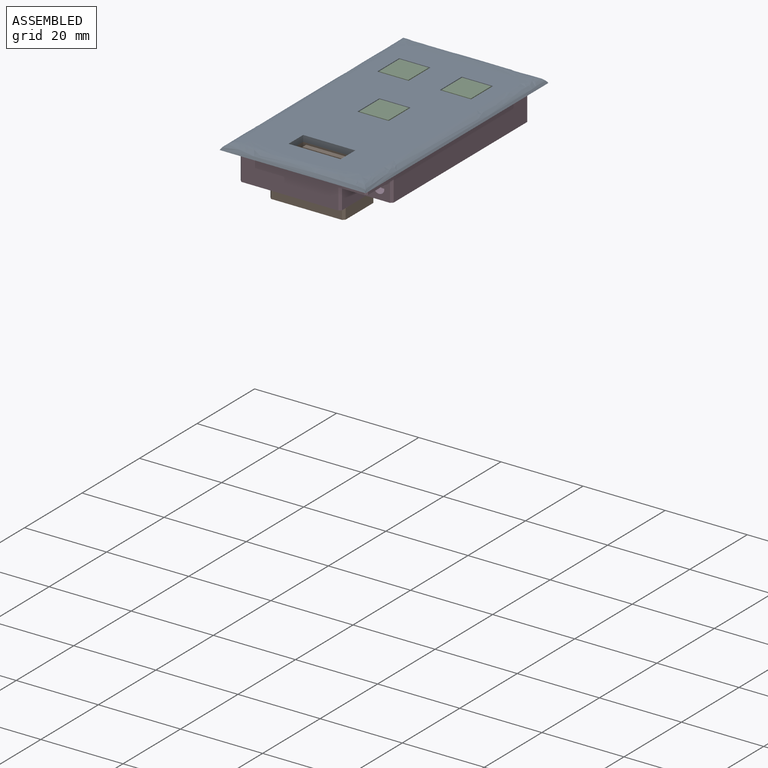
[diagram: assembled view]
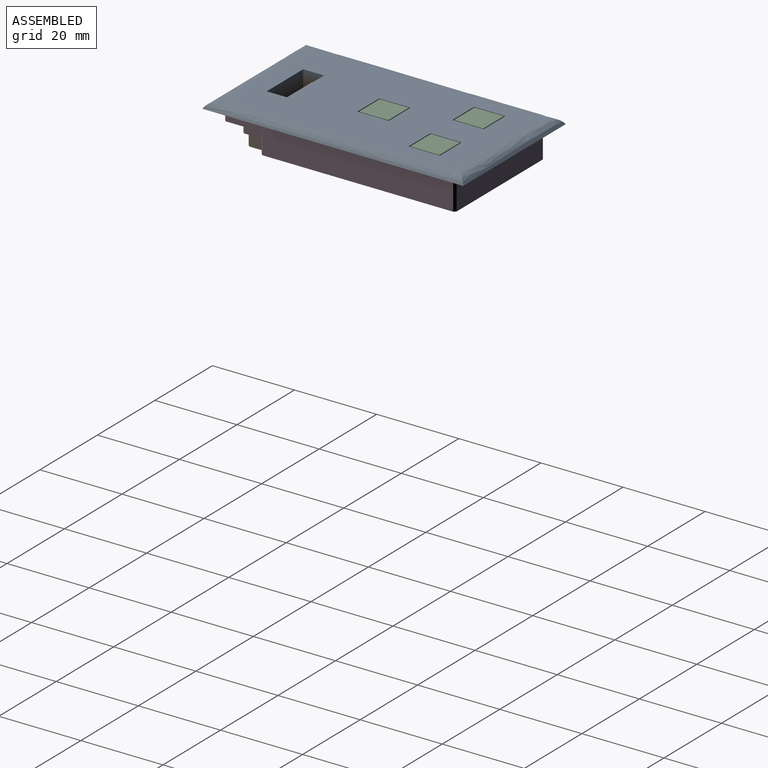
[diagram: assembled view, second angle]
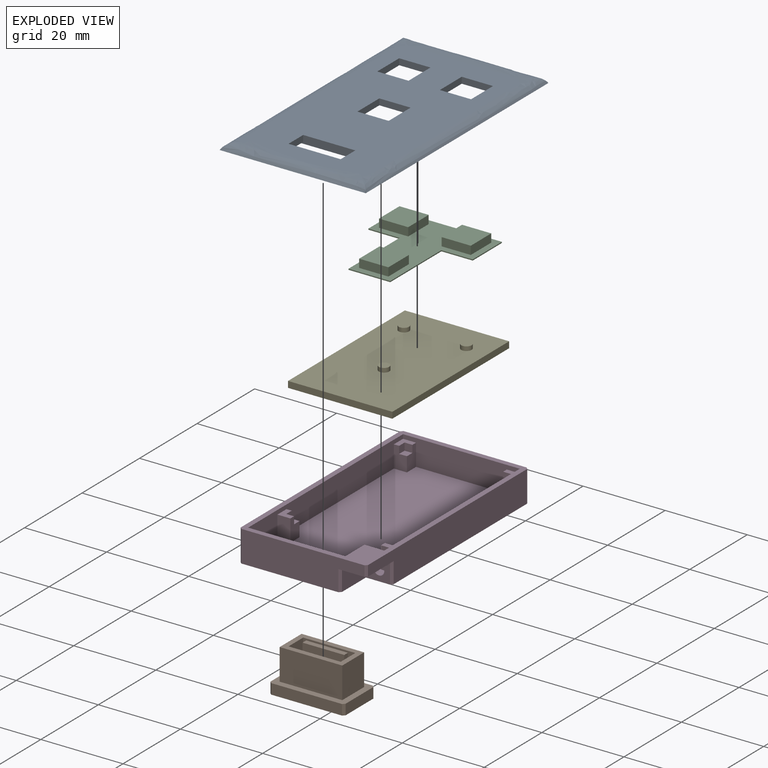
[diagram: exploded view]
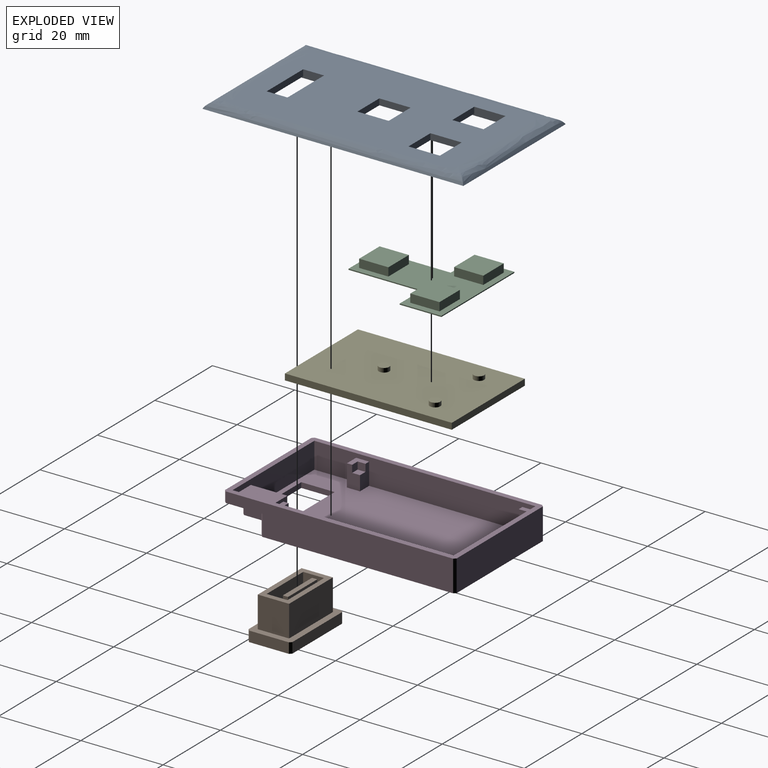
[diagram: exploded view, second angle]
ASSEMBLY  parts=5 mates=4
PART A: 41 faces, bbox 35.6x63.5x3.1 mm
  f0: plane 51.31x25.91mm, normal (0,0,-1), area 992.5mm2, adj f6,f7,f8,f9,f10,f11,f12,f13
  f1: plane 63.5x35.56mm, normal (0,0,-1), area 767.7mm2, adj f20,f21,f22,f23,f24,f25,f26,f39
  f2: plane 54.97x27.03mm, normal (0,0,1), area 1246.8mm2, adj f3,f4,f5,f6,f7,f8,f9,f10
  f3: plane 5.08x1.52mm, normal (-1,0,0), area 7.7mm2, adj f2,f4,f18,f19
  f4: plane 12.7x1.52mm, normal (0,1,0), area 19.4mm2, adj f2,f3,f5,f19
  f5: plane 5.08x1.52mm, normal (1,0,0), area 7.7mm2, adj f2,f4,f18,f19
  f6: plane 7.62x1.52mm, normal (-1,0,0), area 11.6mm2, adj f0,f2,f7,f15
  f7: plane 7.62x1.52mm, normal (0,1,0), area 11.6mm2, adj f0,f2,f6,f8
  f8: plane 7.62x1.52mm, normal (1,0,0), area 11.6mm2, adj f0,f2,f7,f15
  f9: plane 7.62x1.52mm, normal (-1,0,0), area 11.6mm2, adj f0,f2,f10,f16
  f10: plane 7.62x1.52mm, normal (0,1,0), area 11.6mm2, adj f0,f2,f9,f11
  f11: plane 7.62x1.52mm, normal (1,0,0), area 11.6mm2, adj f0,f2,f10,f16
  f12: plane 7.62x1.52mm, normal (-1,0,0), area 11.6mm2, adj f0,f2,f13,f17
  f13: plane 7.62x1.52mm, normal (0,1,0), area 11.6mm2, adj f0,f2,f12,f14
  f14: plane 7.62x1.52mm, normal (1,0,0), area 11.6mm2, adj f0,f2,f13,f17
  f15: plane 7.62x1.52mm, normal (0,-1,0), area 11.6mm2, adj f0,f2,f6,f8
  f16: plane 7.62x1.52mm, normal (0,-1,0), area 11.6mm2, adj f0,f2,f9,f11
  f17: plane 7.62x1.52mm, normal (0,-1,0), area 11.6mm2, adj f0,f2,f12,f14
  f18: plane 12.7x1.52mm, normal (0,-1,0), area 19.4mm2, adj f2,f3,f5,f19
  f19: plane 15.75x8.13mm, normal (0,0,-1), area 63.5mm2, adj f3,f4,f5,f18,f34,f35,f36,f38
  f20: bspline ~35.56x4.27mm, area 153.9mm2, adj f1,f2,f21,f22
  f21: bspline ~63.5x4.27mm, area 289.6mm2, adj f1,f2,f20,f23
  f22: bspline ~63.5x4.27mm, area 289.6mm2, adj f1,f2,f20,f23
  f23: bspline ~35.56x4.27mm, area 153.9mm2, adj f1,f2,f21,f22
  f24: plane 27.94x1.27mm, normal (0,-1,0), area 35.5mm2, adj f1,f25,f39,f40
  f25: plane 53.34x1.27mm, normal (-1,0,0), area 67.7mm2, adj f1,f24,f26,f40
  f26: plane 27.94x1.27mm, normal (0,1,0), area 35.5mm2, adj f1,f25,f39,f40
  f27: plane 9.14x1.27mm, normal (1,0,0), area 11.6mm2, adj f0,f28,f37,f40
  f28: plane 4.06x1.27mm, normal (0,1,0), area 5.2mm2, adj f0,f27,f29,f40
  f29: plane 51.31x1.27mm, normal (-1,0,0), area 65.2mm2, adj f0,f28,f30,f40
  f30: plane 25.91x1.27mm, normal (0,-1,0), area 32.9mm2, adj f0,f29,f31,f40
  f31: plane 51.31x1.27mm, normal (1,0,0), area 65.2mm2, adj f0,f30,f32,f40
  f32: plane 4.06x1.27mm, normal (0,1,0), area 5.2mm2, adj f0,f31,f33,f40
  f33: plane 9.14x1.27mm, normal (-1,0,0), area 11.6mm2, adj f0,f32,f37,f40
  f34: plane 15.75x1.27mm, normal (0,1,0), area 20mm2, adj f19,f35,f38,f40
  f35: plane 8.13x1.27mm, normal (-1,0,0), area 10.3mm2, adj f19,f34,f36,f40
  f36: plane 15.75x1.27mm, normal (0,-1,0), area 20mm2, adj f19,f35,f38,f40
  f37: plane 17.78x1.27mm, normal (0,1,0), area 22.6mm2, adj f0,f27,f33,f40
  f38: plane 8.13x1.27mm, normal (1,0,0), area 10.3mm2, adj f19,f34,f36,f40
  f39: plane 53.34x1.27mm, normal (1,0,0), area 67.7mm2, adj f1,f24,f26,f40
  f40: plane 53.34x27.94mm, normal (0,0,-1), area 195.6mm2, adj f24,f25,f26,f27,f28,f29,f30,f31
PART B: 25 faces, bbox 18.3x10.7x10.2 mm
  f0: plane 10.16x1.27mm, normal (0,0,1), area 12.9mm2, adj f2,f12,f13,f15
  f1: plane 15.24x7.62mm, normal (0,0,1), area 51.6mm2, adj f3,f4,f5,f6,f7,f8,f9,f10
  f2: plane 10.16x2.03mm, normal (1,0,0), area 13.9mm2, adj f0,f6,f11,f13,f14,f15
  f3: plane 15.24x7.62mm, normal (0,-1,0), area 116.1mm2, adj f1,f4,f10,f20
  f4: plane 7.62x7.62mm, normal (-1,0,0), area 58.1mm2, adj f1,f3,f5,f20
  f5: plane 15.24x7.62mm, normal (0,1,0), area 116.1mm2, adj f1,f4,f10,f20
  f6: plane 12.7x10.16mm, normal (0,-1,0), area 116.1mm2, adj f1,f2,f7,f9,f11,f12,f14
  f7: plane 10.16x5.08mm, normal (1,0,0), area 51.6mm2, adj f1,f6,f8,f11
  f8: plane 12.7x10.16mm, normal (0,1,0), area 129mm2, adj f1,f7,f9,f11
  f9: plane 10.16x5.08mm, normal (-1,0,0), area 51.6mm2, adj f1,f6,f8,f11
  f10: plane 7.62x7.62mm, normal (1,0,0), area 58.1mm2, adj f1,f3,f5,f20
  f11: plane 18.29x10.67mm, normal (0,0,-1), area 150.7mm2, adj f2,f6,f7,f8,f9,f12,f13,f16
  f12: plane 10.16x2.03mm, normal (-1,0,0), area 13.9mm2, adj f0,f6,f11,f13,f14,f15
  f13: plane 10.16x10.16mm, normal (0,-1,0), area 103.2mm2, adj f0,f2,f11,f12
  f14: plane 10.16x0.76mm, normal (0,0,1), area 7.7mm2, adj f2,f6,f12,f15
  f15: plane 10.16x8.89mm, normal (0,1,0), area 90.3mm2, adj f0,f2,f12,f14
  f16: plane 17.27x2.54mm, normal (0,1,0), area 43.9mm2, adj f11,f20,f21,f22
  f17: plane 9.65x2.54mm, normal (1,0,0), area 24.5mm2, adj f11,f20,f21,f24
  f18: plane 9.65x2.54mm, normal (-1,0,0), area 24.5mm2, adj f11,f20,f22,f23
  f19: plane 17.27x2.54mm, normal (0,-1,0), area 43.9mm2, adj f11,f20,f23,f24
  f20: plane 18.29x10.67mm, normal (0,0,1), area 78.5mm2, adj f3,f4,f5,f10,f16,f17,f18,f19
  f21: plane 2.54x0.51mm, normal (0.71,0.71,0), area 1.8mm2, adj f11,f16,f17,f20
  f22: plane 2.54x0.51mm, normal (-0.71,0.71,0), area 1.8mm2, adj f11,f16,f18,f20
  f23: plane 2.54x0.51mm, normal (-0.71,-0.71,0), area 1.8mm2, adj f11,f18,f19,f20
  f24: plane 2.54x0.51mm, normal (0.71,-0.71,0), area 1.8mm2, adj f11,f17,f19,f20
PART C: 31 faces, bbox 25.4x27.9x2.3 mm
  f0: plane 27.94x25.4mm, normal (0,0,-1), area 389.5mm2, adj f1,f2,f3,f4,f5,f7,f8,f9
  f1: plane 10.16x0.25mm, normal (-1,0,0), area 2.6mm2, adj f0,f2,f6,f7
  f2: plane 7.62x0.25mm, normal (0,-1,0), area 1.9mm2, adj f0,f1,f3,f6
  f3: plane 17.78x0.25mm, normal (-1,0,0), area 4.5mm2, adj f0,f2,f4,f6
  f4: plane 10.16x0.25mm, normal (0,-1,0), area 2.6mm2, adj f0,f3,f5,f6
  f5: plane 17.78x0.25mm, normal (1,0,0), area 4.5mm2, adj f0,f4,f6,f8
  f6: plane 27.94x25.4mm, normal (0,0,1), area 287mm2, adj f1,f2,f3,f4,f5,f7,f8,f9
  f7: plane 25.4x0.25mm, normal (0,1,0), area 6.5mm2, adj f0,f1,f6,f9
  f8: plane 7.62x0.25mm, normal (0,-1,0), area 1.9mm2, adj f0,f5,f6,f9
  f9: plane 10.16x0.25mm, normal (1,0,0), area 2.6mm2, adj f0,f6,f7,f8
  f10: plane 7.11x2.03mm, normal (0,-1,0), area 14.5mm2, adj f6,f11,f12,f13
  f11: plane 7.11x2.03mm, normal (-1,0,0), area 14.5mm2, adj f6,f10,f13,f14
  f12: plane 7.11x2.03mm, normal (1,0,0), area 14.5mm2, adj f6,f10,f13,f14
  f13: plane 7.11x7.11mm, normal (0,0,1), area 50.6mm2, adj f10,f11,f12,f14
  f14: plane 7.11x2.03mm, normal (0,1,0), area 14.5mm2, adj f6,f11,f12,f13
  f15: plane 7.11x2.03mm, normal (1,0,0), area 14.5mm2, adj f6,f16,f17,f18
  f16: plane 7.11x2.03mm, normal (0,-1,0), area 14.5mm2, adj f6,f15,f18,f19
  f17: plane 7.11x2.03mm, normal (0,1,0), area 14.5mm2, adj f6,f15,f18,f19
  f18: plane 7.11x7.11mm, normal (0,0,1), area 50.6mm2, adj f15,f16,f17,f19
  f19: plane 7.11x2.03mm, normal (-1,0,0), area 14.5mm2, adj f6,f16,f17,f18
  f20: plane 7.11x7.11mm, normal (0,0,1), area 50.6mm2, adj f21,f22,f23,f24
  f21: plane 7.11x2.03mm, normal (0,1,0), area 14.5mm2, adj f6,f20,f22,f24
  f22: plane 7.11x2.03mm, normal (1,0,0), area 14.5mm2, adj f6,f20,f21,f23
  f23: plane 7.11x2.03mm, normal (0,-1,0), area 14.5mm2, adj f6,f20,f22,f24
  f24: plane 7.11x2.03mm, normal (-1,0,0), area 14.5mm2, adj f6,f20,f21,f23
  f25: cylinder r=2.29mm len=4.57mm, axis (0,0,-1), area 21.9mm2, adj f0,f26
  f26: plane 4.57x4.57mm, normal (0,0,-1), area 16.4mm2, adj f25
  f27: cylinder r=2.29mm len=4.57mm, axis (0,0,-1), area 21.9mm2, adj f0,f28
  f28: plane 4.57x4.57mm, normal (0,0,-1), area 16.4mm2, adj f27
  f29: cylinder r=2.29mm len=4.57mm, axis (0,0,-1), area 21.9mm2, adj f0,f30
  f30: plane 4.57x4.57mm, normal (0,0,-1), area 16.4mm2, adj f29
PART D: 53 faces, bbox 31x56.4x7.6 mm
  f0: plane 29.97x7.62mm, normal (0,-1,0), area 196.1mm2, adj f10,f11,f45,f48,f49,f52
  f1: plane 55.37x7.62mm, normal (1,0,0), area 376.8mm2, adj f10,f11,f45,f47,f49,f50
  f2: cylinder r=1.27mm len=2.54mm, axis (0,-1,0), area 10.1mm2, adj f43,f44
  f3: plane 53.85x28.45mm, normal (0,0,1), area 1307.1mm2, adj f4,f5,f6,f9,f12,f13,f14,f15
  f4: plane 53.85x6.35mm, normal (-1,0,0), area 262.9mm2, adj f3,f6,f9,f10,f21,f24,f32,f33
  f5: plane 53.85x6.35mm, normal (1,0,0), area 308.1mm2, adj f3,f6,f9,f10,f16,f17,f26,f27
  f6: plane 28.45x6.35mm, normal (0,-1,0), area 146.8mm2, adj f3,f4,f5,f10,f16,f20,f21,f22
  f7: plane 29.97x7.62mm, normal (0,1,0), area 228.4mm2, adj f10,f11,f50,f51
  f8: plane 55.37x7.62mm, normal (-1,0,0), area 421.9mm2, adj f10,f11,f51,f52
  f9: plane 28.45x6.35mm, normal (0,1,0), area 148.4mm2, adj f3,f4,f5,f10,f15,f42
  f10: plane 56.39x30.99mm, normal (0,0,1), area 215mm2, adj f0,f1,f4,f5,f6,f7,f8,f9
  f11: plane 56.39x30.99mm, normal (0,0,-1), area 1562.3mm2, adj f0,f1,f7,f8,f12,f13,f14,f15
  f12: plane 8.13x1.27mm, normal (1,0,0), area 10.3mm2, adj f3,f11,f13,f14
  f13: plane 15.75x1.27mm, normal (0,1,0), area 20mm2, adj f3,f11,f12,f15
  f14: plane 15.75x1.27mm, normal (0,-1,0), area 20mm2, adj f3,f11,f12,f15
  f15: plane 9.4x6.35mm, normal (-1,0,0), area 55.5mm2, adj f3,f9,f11,f13,f14,f42,f43
  f16: plane 3.18x3.18mm, normal (0,0,1), area 6.5mm2, adj f5,f6,f17,f18,f19,f20
  f17: plane 5.33x3.18mm, normal (0,-1,0), area 13.5mm2, adj f3,f5,f16,f18,f20,f38
  f18: plane 1.91x1.78mm, normal (1,0,0), area 3.4mm2, adj f16,f17,f19,f38
  f19: plane 1.91x1.78mm, normal (0,-1,0), area 3.4mm2, adj f16,f18,f20,f38
  f20: plane 5.33x3.18mm, normal (1,0,0), area 13.5mm2, adj f3,f6,f16,f17,f19,f38
  f21: plane 3.18x3.18mm, normal (0,0,1), area 6.5mm2, adj f4,f6,f22,f23,f24,f25
  f22: plane 5.33x3.18mm, normal (-1,0,0), area 13.5mm2, adj f3,f6,f21,f23,f24,f39
  f23: plane 1.91x1.78mm, normal (0,-1,0), area 3.4mm2, adj f21,f22,f25,f39
  f24: plane 5.33x3.18mm, normal (0,-1,0), area 13.5mm2, adj f3,f4,f21,f22,f25,f39
  f25: plane 1.91x1.78mm, normal (-1,0,0), area 3.4mm2, adj f21,f23,f24,f39
  f26: plane 3.18x3.18mm, normal (0,0,1), area 6.5mm2, adj f5,f27,f28,f29,f30,f31
  f27: plane 5.33x3.18mm, normal (0,-1,0), area 16.9mm2, adj f3,f5,f26,f28
  f28: plane 5.33x3.18mm, normal (1,0,0), area 13.5mm2, adj f3,f26,f27,f29,f31,f40
  f29: plane 1.91x1.78mm, normal (0,1,0), area 3.4mm2, adj f26,f28,f30,f40
  f30: plane 1.91x1.78mm, normal (1,0,0), area 3.4mm2, adj f26,f29,f31,f40
  f31: plane 5.33x3.18mm, normal (0,1,0), area 13.5mm2, adj f3,f5,f26,f28,f30,f40
  f32: plane 3.18x3.18mm, normal (0,0,1), area 6.5mm2, adj f4,f33,f34,f35,f36,f37
  f33: plane 5.33x3.18mm, normal (0,1,0), area 13.5mm2, adj f3,f4,f32,f34,f37,f41
  f34: plane 1.91x1.78mm, normal (-1,0,0), area 3.4mm2, adj f32,f33,f35,f41
  f35: plane 1.91x1.78mm, normal (0,1,0), area 3.4mm2, adj f32,f34,f37,f41
  f36: plane 5.33x3.18mm, normal (0,-1,0), area 16.9mm2, adj f3,f4,f32,f37
  f37: plane 5.33x3.18mm, normal (-1,0,0), area 13.5mm2, adj f3,f32,f33,f35,f36,f41
  f38: plane 1.91x1.91mm, normal (0,0,1), area 3.6mm2, adj f17,f18,f19,f20
  f39: plane 1.91x1.91mm, normal (0,0,1), area 3.6mm2, adj f22,f23,f24,f25
  f40: plane 1.91x1.91mm, normal (0,0,1), area 3.6mm2, adj f28,f29,f30,f31
  f41: plane 1.91x1.91mm, normal (0,0,1), area 3.6mm2, adj f33,f34,f35,f37
  f42: plane 8.89x6.35mm, normal (0,0,1), area 56.5mm2, adj f4,f9,f15,f43
  f43: plane 6.35x5.08mm, normal (0,1,0), area 27.2mm2, adj f2,f3,f4,f15,f42
  f44: plane 5.84x5.08mm, normal (0,-1,0), area 24.6mm2, adj f2,f11,f45,f46,f47
  f45: plane 9.4x6.86mm, normal (0,0,-1), area 56.6mm2, adj f0,f1,f44,f46,f47,f48,f49
  f46: plane 8.38x5.08mm, normal (1,0,0), area 42.6mm2, adj f11,f44,f45,f48
  f47: plane 5.08x0.51mm, normal (0.71,-0.71,0), area 3.6mm2, adj f1,f11,f44,f45
  f48: plane 5.08x0.51mm, normal (0.71,-0.71,0), area 3.6mm2, adj f0,f11,f45,f46
  f49: plane 2.54x0.51mm, normal (0.71,-0.71,0), area 1.8mm2, adj f0,f1,f10,f45
  f50: plane 7.62x0.51mm, normal (0.71,0.71,0), area 5.5mm2, adj f1,f7,f10,f11
  f51: plane 7.62x0.51mm, normal (-0.71,0.71,0), area 5.5mm2, adj f7,f8,f10,f11
  f52: plane 7.62x0.51mm, normal (-0.71,-0.71,0), area 5.5mm2, adj f0,f8,f10,f11
PART E: 12 faces, bbox 25.4x40.6x2.5 mm
  f0: plane 25.4x1.52mm, normal (0,1,0), area 38.7mm2, adj f1,f3,f4,f5
  f1: plane 40.64x1.52mm, normal (-1,0,0), area 61.9mm2, adj f0,f2,f4,f5
  f2: plane 25.4x1.52mm, normal (0,-1,0), area 38.7mm2, adj f1,f3,f4,f5
  f3: plane 40.64x1.52mm, normal (1,0,0), area 61.9mm2, adj f0,f2,f4,f5
  f4: plane 40.64x25.4mm, normal (0,0,1), area 1017.1mm2, adj f0,f1,f2,f3,f6,f8,f10
  f5: plane 40.64x25.4mm, normal (0,0,-1), area 1032.3mm2, adj f0,f1,f2,f3
  f6: cylinder r=1.27mm len=2.54mm, axis (0,0,-1), area 8.1mm2, adj f4,f7
  f7: plane 2.54x2.54mm, normal (0,0,1), area 5.1mm2, adj f6
  f8: cylinder r=1.27mm len=2.54mm, axis (0,0,-1), area 8.1mm2, adj f4,f9
  f9: plane 2.54x2.54mm, normal (0,0,1), area 5.1mm2, adj f8
  f10: cylinder r=1.27mm len=2.54mm, axis (0,0,-1), area 8.1mm2, adj f4,f11
  f11: plane 2.54x2.54mm, normal (0,0,1), area 5.1mm2, adj f10
PLACE A t=(-24.51,-6.25,-34.9)mm
PLACE B t=(-24.51,-6.25,-34.9)mm
PLACE C t=(-24.51,-6.25,-34.9)mm
PLACE D t=(-24.51,-6.25,-34.9)mm
PLACE E t=(-24.51,-6.25,-35.16)mm
MATE fastened C.f20 <-> A.f2  axis (0,0,1) through (-28.07,-14.89,-30.84)mm
MATE fastened A.f19 <-> B.f1  axis (0,0,-1) through (-18.16,-35.46,-32.36)mm
MATE fastened A.f1 <-> D.f10  axis (0,0,-1) through (-10.54,-38,-32.36)mm
MATE fastened E.f5 <-> D.f41  axis (0,0,-1) through (-11.81,-26.57,-35.16)mm
